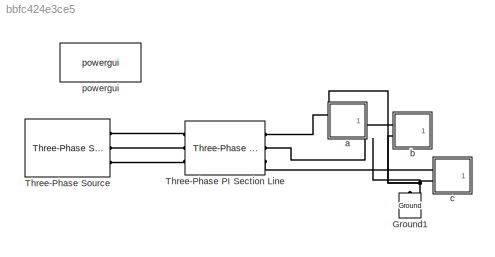
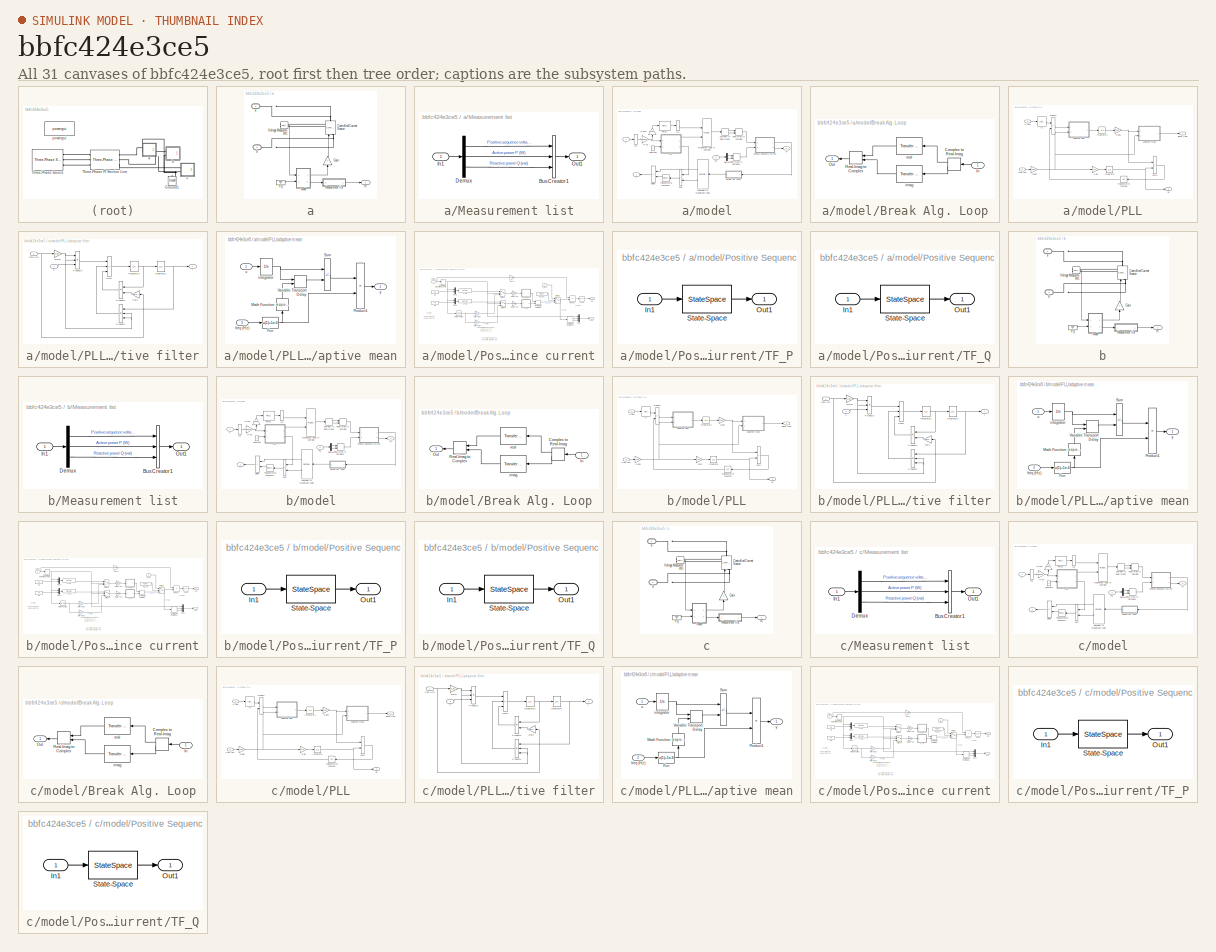
[diagram: thumbnail index - all 31 canvases of the model, root first then tree order]
MODEL slx_bbfc424e3ce5
KIND model
CONFIG AbsTol = auto
CONFIG EnableMultiTasking = on
CONFIG FixedStep = auto
CONFIG MaxStep = auto
CONFIG MinStep = auto
CONFIG RelTol = 1e-3
CONFIG SampleTimeConstraint = Unconstrained
CONFIG Solver = VariableStepAuto
CONFIG SolverName = VariableStepAuto
CONFIG StartTime = 0.0
CONFIG StopTime = 0.04
BLOCK [Reference] Ground1  REF=powerlib/Elements/Ground
  NameLocation = right
  Ports = [0, 0, 0, 0, 0, 1]
  SourceBlock = powerlib/Elements/Ground
  SourceProductBaseCode = PS
  SourceType = Ground
BLOCK [Reference] Three-Phase PI Section Line  REF=powerlib/Elements/Three-Phase
PI Section Line
  AttributesFormatString = \n
  Ports = [0, 0, 0, 0, 0, 3, 3]
  SourceBlock = powerlib/Elements/Three-Phase\nPI Section Line
  SourceProductBaseCode = PS
  SourceType = Three-Phase PI Section Line
BLOCK [Reference] Three-Phase Source  REF=powerlib/Electrical
Sources/Three-Phase Source
  Ports = [0, 0, 0, 0, 0, 0, 3]
  SourceBlock = powerlib/Electrical\nSources/Three-Phase Source
  SourceProductBaseCode = PS
  SourceType = Three-Phase Source
BLOCK [SubSystem] a
  DialogController = POWERSYS.PowerSysDialog
  Ports = [0, 1, 0, 0, 0, 2]
  RequestExecContextInheritance = off
BLOCK [Reference] a/Controlled Current Source  REF=powerlib/Electrical
Sources/Controlled Current Source
  NameLocation = right
  Ports = [1, 0, 0, 0, 0, 1, 1]
  SourceBlock = powerlib/Electrical\nSources/Controlled Current Source
  SourceProductBaseCode = PS
  SourceType = Controlled Current Source
BLOCK [Gain] a/Gain
  Gain = -1
  NameLocation = right
BLOCK [SubSystem] a/Measurement list
  Ports = [1, 1]
  RequestExecContextInheritance = off
BLOCK [BusCreator] a/Measurement list/Bus Creator1
  DisplayOption = bar
  InheritFromInputs = on
  Inputs = 3
  Ports = [3, 1]
BLOCK [Demux] a/Measurement list/Demux
  Outputs = [1,1,1]
  Ports = [1, 3]
BLOCK [Inport] a/Measurement list/In1
BLOCK [Outport] a/Measurement list/Out1
  VectorParamsAs1DForOutWhenUnconnected = off
BLOCK [Ground] a/PQ
BLOCK [Reference] a/Voltage Measurement1  REF=powerlib/Measurements/Voltage Measurement
  Ports = [0, 1, 0, 0, 0, 2]
  SourceBlock = powerlib/Measurements/Voltage Measurement
  SourceProductBaseCode = PS
  SourceType = Voltage Measurement
BLOCK [PMIOPort] a/a
  Side = Left
  Tag = PMCPort
BLOCK [PMIOPort] a/b
  Port = 2
  Side = Left
  Tag = PMCPort
BLOCK [Outport] a/m
  InitialOutput = [0,0,0]
  VectorParamsAs1DForOutWhenUnconnected = off
BLOCK [SubSystem] a/model
  Ports = [2, 2]
  RequestExecContextInheritance = off
BLOCK [SubSystem] a/model/Break Alg. Loop
  Ports = [1, 1]
  RequestExecContextInheritance = off
BLOCK [ComplexToRealImag] a/model/Break Alg. Loop/Complex to Real-Imag
  Ports = [1, 2]
BLOCK [Inport] a/model/Break Alg. Loop/In
BLOCK [Outport] a/model/Break Alg. Loop/Out
  VectorParamsAs1DForOutWhenUnconnected = off
BLOCK [RealImagToComplex] a/model/Break Alg. Loop/Real-Imag to Complex
  Ports = [2, 1]
BLOCK [Reference] a/model/Break Alg. Loop/imag  REF=simulink_extras/Additional
Linear/Transfer Fcn
(with initial outputs)
  Ports = [1, 1]
  SourceBlock = simulink_extras/Additional\nLinear/Transfer Fcn\n(with initial outputs)
  SourceProductBaseCode = SL
  SourceType = Transfer Function with Initial Outputs
BLOCK [Reference] a/model/Break Alg. Loop/real  REF=simulink_extras/Additional
Linear/Transfer Fcn
(with initial outputs)
  Ports = [1, 1]
  SourceBlock = simulink_extras/Additional\nLinear/Transfer Fcn\n(with initial outputs)
  SourceProductBaseCode = SL
  SourceType = Transfer Function with Initial Outputs
BLOCK [ComplexToMagnitudeAngle] a/model/Complex to Magnitude-Angle
  NameLocation = top
  Ports = [1, 2]
BLOCK [ComplexToRealImag] a/model/Complex to Real-Imag1
  Ports = [1, 2]
BLOCK [Constant] a/model/Constant
BLOCK [Demux] a/model/Demux
  DisplayOption = none
  Outputs = 2
  Ports = [1, 2]
BLOCK [Product] a/model/Divide
  Inputs = **
  NameLocation = top
  Ports = [2, 1]
BLOCK [InitialCondition] a/model/IC1
BLOCK [InitialCondition] a/model/IC2
BLOCK [MagnitudeAngleToComplex] a/model/Magnitude-Angle to Complex
  Ports = [2, 1]
BLOCK [SubSystem] a/model/PLL
  Ports = [2, 2]
  RequestExecContextInheritance = off
BLOCK [Gain] a/model/PLL/Gain
  Gain = 2*pi
  NameLocation = top
BLOCK [Gain] a/model/PLL/Gain1
  Gain = 500
  NameLocation = top
BLOCK [Gain] a/model/PLL/Gain2
  Gain = freq
  NameLocation = top
BLOCK [InitialCondition] a/model/PLL/IC
BLOCK [Integrator] a/model/PLL/Integrator
  Ports = [1, 1]
BLOCK [Integrator] a/model/PLL/Integrator1
  Ports = [1, 1]
BLOCK [Product] a/model/PLL/Product
  Inputs = **
  Ports = [2, 1]
  RndMeth = Zero
BLOCK [Sum] a/model/PLL/Sum1
  IconShape = rectangular
  InputSameDT = on
  OutDataTypeStr = Inherit: Same as first input
  Ports = [2, 1]
  SaturateOnIntegerOverflow = on
BLOCK [Trigonometry] a/model/PLL/Trigonometric Function
  Operator = cos
  Ports = [1, 1]
BLOCK [SubSystem] a/model/PLL/adaptive filter
  Ports = [2, 1]
  RequestExecContextInheritance = off
BLOCK [Gain] a/model/PLL/adaptive filter/Gain
  Gain = 2*pi*2*0.707*2
  NameLocation = top
BLOCK [Gain] a/model/PLL/adaptive filter/Gain1
  Gain = 2*pi*2
BLOCK [Product] a/model/PLL/adaptive filter/Product1
  Inputs = ***
  NameLocation = top
  Ports = [3, 1]
  RndMeth = Zero
BLOCK [Product] a/model/PLL/adaptive filter/Product2
  Inputs = **
  NameLocation = top
  Ports = [2, 1]
  RndMeth = Zero
BLOCK [Product] a/model/PLL/adaptive filter/Product3
  Inputs = ***
  Ports = [3, 1]
  RndMeth = Zero
BLOCK [Sum] a/model/PLL/adaptive filter/Sum1
  IconShape = rectangular
  InputSameDT = on
  Inputs = +--
  OutDataTypeStr = Inherit: Same as first input
  Ports = [3, 1]
  SaturateOnIntegerOverflow = on
BLOCK [Inport] a/model/PLL/adaptive filter/freq (Hz)
  Port = 2
BLOCK [Integrator] a/model/PLL/adaptive filter/integrator1
  Ports = [1, 1]
BLOCK [Integrator] a/model/PLL/adaptive filter/integrator2
  Ports = [1, 1]
BLOCK [Inport] a/model/PLL/adaptive filter/u
BLOCK [Outport] a/model/PLL/adaptive filter/y
  VectorParamsAs1DForOutWhenUnconnected = off
BLOCK [SubSystem] a/model/PLL/adaptive mean
  Ports = [2, 1]
  RequestExecContextInheritance = off
BLOCK [Fcn] a/model/PLL/adaptive mean/Fcn
  Expr = u(1)+1e-6
BLOCK [Math] a/model/PLL/adaptive mean/Math Function
  NameLocation = right
  Operator = reciprocal
  Ports = [1, 1]
  SignedPower = on
BLOCK [Product] a/model/PLL/adaptive mean/Product1
  Inputs = **
  Ports = [2, 1]
  RndMeth = Zero
BLOCK [Sum] a/model/PLL/adaptive mean/Sum
  IconShape = rectangular
  InputSameDT = on
  Inputs = +-
  OutDataTypeStr = Inherit: Same as first input
  Ports = [2, 1]
  SaturateOnIntegerOverflow = on
BLOCK [VariableTransportDelay] a/model/PLL/adaptive mean/Variable Transport Delay
  MaximumDelay = 1/40
  MaximumPoints = 4096
  Ports = [2, 1]
BLOCK [Inport] a/model/PLL/adaptive mean/freq (Hz)
  Port = 2
BLOCK [Integrator] a/model/PLL/adaptive mean/integrator
  Ports = [1, 1]
BLOCK [Inport] a/model/PLL/adaptive mean/u
BLOCK [Outport] a/model/PLL/adaptive mean/y
  VectorParamsAs1DForOutWhenUnconnected = off
BLOCK [Outport] a/model/PLL/alpha (rad)
  VectorParamsAs1DForOutWhenUnconnected = off
BLOCK [Inport] a/model/PLL/freq (pu)
  Port = 2
BLOCK [Inport] a/model/PLL/v (pu)
BLOCK [Outport] a/model/PLL/wt
  Port = 2
  VectorParamsAs1DForOutWhenUnconnected = off
BLOCK [Inport] a/model/PQ
  Port = 2
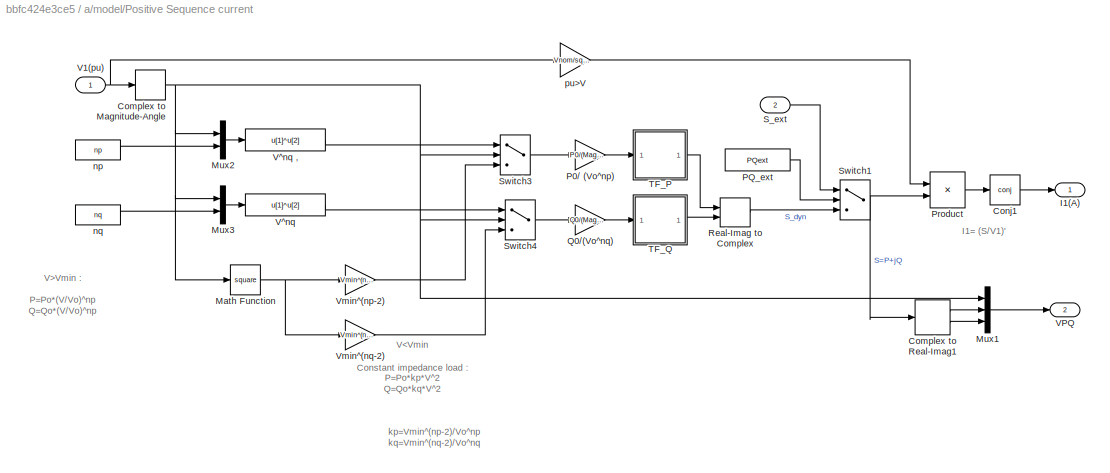
BLOCK [SubSystem] a/model/Positive Sequence current
  Ports = [2, 2]
  RequestExecContextInheritance = off
BLOCK [ComplexToMagnitudeAngle] a/model/Positive Sequence current/Complex to Magnitude-Angle
  Output = Magnitude
  Ports = [1, 1]
BLOCK [ComplexToRealImag] a/model/Positive Sequence current/Complex to Real-Imag1
  Ports = [1, 2]
BLOCK [Math] a/model/Positive Sequence current/Conj1
  Operator = conj
  Ports = [1, 1]
  SignedPower = on
BLOCK [Outport] a/model/Positive Sequence current/I1(A)
  VectorParamsAs1DForOutWhenUnconnected = off
BLOCK [Math] a/model/Positive Sequence current/Math Function
  Operator = square
  Ports = [1, 1]
  SignedPower = on
BLOCK [Mux] a/model/Positive Sequence current/Mux1
  DisplayOption = bar
  Inputs = 3
  Ports = [3, 1]
BLOCK [Mux] a/model/Positive Sequence current/Mux2
  DisplayOption = bar
  Inputs = 2
  Ports = [2, 1]
BLOCK [Mux] a/model/Positive Sequence current/Mux3
  DisplayOption = bar
  Inputs = 2
  Ports = [2, 1]
BLOCK [Gain] a/model/Positive Sequence current/P0// (Vo^np)
  Gain = P0/(Mag_V0^np)
  OutDataTypeStr = Inherit: Same as input
  ParamDataTypeStr = Inherit: Same as input
  SaturateOnIntegerOverflow = on
BLOCK [Constant] a/model/Positive Sequence current/PQ_ext
  Value = PQext
BLOCK [Product] a/model/Positive Sequence current/Product
  InputSameDT = on
  Inputs = /*
  OutDataTypeStr = Inherit: Same as first input
  Ports = [2, 1]
  SaturateOnIntegerOverflow = on
BLOCK [Gain] a/model/Positive Sequence current/Q0//(Vo^nq)
  Gain = Q0/(Mag_V0^nq)
  OutDataTypeStr = Inherit: Same as input
  ParamDataTypeStr = Inherit: Same as input
  SaturateOnIntegerOverflow = on
BLOCK [RealImagToComplex] a/model/Positive Sequence current/Real-Imag to Complex
  Ports = [2, 1]
BLOCK [Inport] a/model/Positive Sequence current/S_ext
  Port = 2
BLOCK [Switch] a/model/Positive Sequence current/Switch1
  SaturateOnIntegerOverflow = off
  Threshold = 0.5
BLOCK [Switch] a/model/Positive Sequence current/Switch3
  SaturateOnIntegerOverflow = off
  Threshold = Vmin
BLOCK [Switch] a/model/Positive Sequence current/Switch4
  SaturateOnIntegerOverflow = off
  Threshold = Vmin
BLOCK [SubSystem] a/model/Positive Sequence current/TF_P
  Ports = [1, 1]
  RequestExecContextInheritance = off
BLOCK [Inport] a/model/Positive Sequence current/TF_P/In1
BLOCK [Outport] a/model/Positive Sequence current/TF_P/Out1
  VectorParamsAs1DForOutWhenUnconnected = off
BLOCK [StateSpace] a/model/Positive Sequence current/TF_P/State-Space
  A = Ac
  B = Bc
  C = Cc
  D = Dc
  InitialCondition = x0c
  Ports = [1, 1]
BLOCK [SubSystem] a/model/Positive Sequence current/TF_Q
  Ports = [1, 1]
  RequestExecContextInheritance = off
BLOCK [Inport] a/model/Positive Sequence current/TF_Q/In1
BLOCK [Outport] a/model/Positive Sequence current/TF_Q/Out1
  VectorParamsAs1DForOutWhenUnconnected = off
BLOCK [StateSpace] a/model/Positive Sequence current/TF_Q/State-Space
  A = Ac
  B = Bc
  C = Cc
  D = Dc
  InitialCondition = x0c
  Ports = [1, 1]
BLOCK [Inport] a/model/Positive Sequence current/V1(pu)
BLOCK [Outport] a/model/Positive Sequence current/VPQ
  Port = 2
  VectorParamsAs1DForOutWhenUnconnected = off
BLOCK [Fcn] a/model/Positive Sequence current/V^nq
  Expr = u[1]^u[2]
BLOCK [Fcn] a/model/Positive Sequence current/V^nq ,
  Expr = u[1]^u[2]
BLOCK [Gain] a/model/Positive Sequence current/Vmin^(np-2)
  Gain = Vmin^(np-2)
  OutDataTypeStr = Inherit: Same as input
  ParamDataTypeStr = Inherit: Same as input
  SaturateOnIntegerOverflow = on
BLOCK [Gain] a/model/Positive Sequence current/Vmin^(nq-2)
  Gain = Vmin^(nq-2)
  OutDataTypeStr = Inherit: Same as input
  ParamDataTypeStr = Inherit: Same as input
  SaturateOnIntegerOverflow = on
BLOCK [Constant] a/model/Positive Sequence current/np
  Value = np
BLOCK [Constant] a/model/Positive Sequence current/nq
  Value = nq
BLOCK [Gain] a/model/Positive Sequence current/pu>V
  Gain = Vnom/sqrt(2)
  OutDataTypeStr = Inherit: Same as input
  ParamDataTypeStr = Inherit: Same as input
  SaturateOnIntegerOverflow = on
BLOCK [Reference] a/model/RMS1  REF=powerlib_meascontrol/Measurements/RMS
  Ports = [1, 1]
  SourceBlock = powerlib_meascontrol/Measurements/RMS
  SourceProductBaseCode = PS
  SourceType = RMS
BLOCK [RealImagToComplex] a/model/Real-Imag to Complex
  Ports = [2, 1]
BLOCK [RealImagToComplex] a/model/Real-Imag to Complex1
  Ports = [2, 1]
BLOCK [Sum] a/model/Sum
  IconShape = rectangular
  NameLocation = top
  Ports = [2, 1]
BLOCK [Trigonometry] a/model/Trigonometric Function1
  Ports = [1, 1]
BLOCK [Gain] a/model/V> pu
  Gain = 1/Vbase/sqrt(3)
  OutDataTypeStr = Inherit: Same as input
  ParamDataTypeStr = Inherit: Same as input
  SaturateOnIntegerOverflow = on
BLOCK [Gain] a/model/V> pu1
  Gain = sqrt(2)
  NameLocation = right
  OutDataTypeStr = Inherit: Same as input
  ParamDataTypeStr = Inherit: Same as input
  SaturateOnIntegerOverflow = on
BLOCK [Outport] a/model/i
  VectorParamsAs1DForOutWhenUnconnected = off
BLOCK [Outport] a/model/m
  Port = 2
  VectorParamsAs1DForOutWhenUnconnected = off
BLOCK [Inport] a/model/v
BLOCK [SubSystem] b
  DialogController = POWERSYS.PowerSysDialog
  Ports = [0, 1, 0, 0, 0, 2]
  RequestExecContextInheritance = off
BLOCK [Reference] b/Controlled Current Source  REF=powerlib/Electrical
Sources/Controlled Current Source
  NameLocation = right
  Ports = [1, 0, 0, 0, 0, 1, 1]
  SourceBlock = powerlib/Electrical\nSources/Controlled Current Source
  SourceProductBaseCode = PS
  SourceType = Controlled Current Source
BLOCK [Gain] b/Gain
  Gain = -1
  NameLocation = right
BLOCK [SubSystem] b/Measurement list
  Ports = [1, 1]
  RequestExecContextInheritance = off
BLOCK [BusCreator] b/Measurement list/Bus Creator1
  DisplayOption = bar
  InheritFromInputs = on
  Inputs = 3
  Ports = [3, 1]
BLOCK [Demux] b/Measurement list/Demux
  Outputs = [1,1,1]
  Ports = [1, 3]
BLOCK [Inport] b/Measurement list/In1
BLOCK [Outport] b/Measurement list/Out1
  VectorParamsAs1DForOutWhenUnconnected = off
BLOCK [Ground] b/PQ
BLOCK [Reference] b/Voltage Measurement1  REF=powerlib/Measurements/Voltage Measurement
  Ports = [0, 1, 0, 0, 0, 2]
  SourceBlock = powerlib/Measurements/Voltage Measurement
  SourceProductBaseCode = PS
  SourceType = Voltage Measurement
BLOCK [PMIOPort] b/a
  Side = Left
  Tag = PMCPort
BLOCK [PMIOPort] b/b
  Port = 2
  Side = Left
  Tag = PMCPort
BLOCK [Outport] b/m
  InitialOutput = [0,0,0]
  VectorParamsAs1DForOutWhenUnconnected = off
BLOCK [SubSystem] b/model
  Ports = [2, 2]
  RequestExecContextInheritance = off
BLOCK [SubSystem] b/model/Break Alg. Loop
  Ports = [1, 1]
  RequestExecContextInheritance = off
BLOCK [ComplexToRealImag] b/model/Break Alg. Loop/Complex to Real-Imag
  Ports = [1, 2]
BLOCK [Inport] b/model/Break Alg. Loop/In
BLOCK [Outport] b/model/Break Alg. Loop/Out
  VectorParamsAs1DForOutWhenUnconnected = off
BLOCK [RealImagToComplex] b/model/Break Alg. Loop/Real-Imag to Complex
  Ports = [2, 1]
BLOCK [Reference] b/model/Break Alg. Loop/imag  REF=simulink_extras/Additional
Linear/Transfer Fcn
(with initial outputs)
  Ports = [1, 1]
  SourceBlock = simulink_extras/Additional\nLinear/Transfer Fcn\n(with initial outputs)
  SourceProductBaseCode = SL
  SourceType = Transfer Function with Initial Outputs
BLOCK [Reference] b/model/Break Alg. Loop/real  REF=simulink_extras/Additional
Linear/Transfer Fcn
(with initial outputs)
  Ports = [1, 1]
  SourceBlock = simulink_extras/Additional\nLinear/Transfer Fcn\n(with initial outputs)
  SourceProductBaseCode = SL
  SourceType = Transfer Function with Initial Outputs
BLOCK [ComplexToMagnitudeAngle] b/model/Complex to Magnitude-Angle
  NameLocation = top
  Ports = [1, 2]
BLOCK [ComplexToRealImag] b/model/Complex to Real-Imag1
  Ports = [1, 2]
BLOCK [Constant] b/model/Constant
BLOCK [Demux] b/model/Demux
  DisplayOption = none
  Outputs = 2
  Ports = [1, 2]
BLOCK [Product] b/model/Divide
  Inputs = **
  NameLocation = top
  Ports = [2, 1]
BLOCK [InitialCondition] b/model/IC1
BLOCK [InitialCondition] b/model/IC2
BLOCK [MagnitudeAngleToComplex] b/model/Magnitude-Angle to Complex
  Ports = [2, 1]
BLOCK [SubSystem] b/model/PLL
  Ports = [2, 2]
  RequestExecContextInheritance = off
BLOCK [Gain] b/model/PLL/Gain
  Gain = 2*pi
  NameLocation = top
BLOCK [Gain] b/model/PLL/Gain1
  Gain = 500
  NameLocation = top
BLOCK [Gain] b/model/PLL/Gain2
  Gain = freq
  NameLocation = top
BLOCK [InitialCondition] b/model/PLL/IC
BLOCK [Integrator] b/model/PLL/Integrator
  Ports = [1, 1]
BLOCK [Integrator] b/model/PLL/Integrator1
  Ports = [1, 1]
BLOCK [Product] b/model/PLL/Product
  Inputs = **
  Ports = [2, 1]
  RndMeth = Zero
BLOCK [Sum] b/model/PLL/Sum1
  IconShape = rectangular
  InputSameDT = on
  OutDataTypeStr = Inherit: Same as first input
  Ports = [2, 1]
  SaturateOnIntegerOverflow = on
BLOCK [Trigonometry] b/model/PLL/Trigonometric Function
  Operator = cos
  Ports = [1, 1]
BLOCK [SubSystem] b/model/PLL/adaptive filter
  Ports = [2, 1]
  RequestExecContextInheritance = off
BLOCK [Gain] b/model/PLL/adaptive filter/Gain
  Gain = 2*pi*2*0.707*2
  NameLocation = top
BLOCK [Gain] b/model/PLL/adaptive filter/Gain1
  Gain = 2*pi*2
BLOCK [Product] b/model/PLL/adaptive filter/Product1
  Inputs = ***
  NameLocation = top
  Ports = [3, 1]
  RndMeth = Zero
BLOCK [Product] b/model/PLL/adaptive filter/Product2
  Inputs = **
  NameLocation = top
  Ports = [2, 1]
  RndMeth = Zero
BLOCK [Product] b/model/PLL/adaptive filter/Product3
  Inputs = ***
  Ports = [3, 1]
  RndMeth = Zero
BLOCK [Sum] b/model/PLL/adaptive filter/Sum1
  IconShape = rectangular
  InputSameDT = on
  Inputs = +--
  OutDataTypeStr = Inherit: Same as first input
  Ports = [3, 1]
  SaturateOnIntegerOverflow = on
BLOCK [Inport] b/model/PLL/adaptive filter/freq (Hz)
  Port = 2
BLOCK [Integrator] b/model/PLL/adaptive filter/integrator1
  Ports = [1, 1]
BLOCK [Integrator] b/model/PLL/adaptive filter/integrator2
  Ports = [1, 1]
BLOCK [Inport] b/model/PLL/adaptive filter/u
BLOCK [Outport] b/model/PLL/adaptive filter/y
  VectorParamsAs1DForOutWhenUnconnected = off
BLOCK [SubSystem] b/model/PLL/adaptive mean
  Ports = [2, 1]
  RequestExecContextInheritance = off
BLOCK [Fcn] b/model/PLL/adaptive mean/Fcn
  Expr = u(1)+1e-6
BLOCK [Math] b/model/PLL/adaptive mean/Math Function
  NameLocation = right
  Operator = reciprocal
  Ports = [1, 1]
  SignedPower = on
BLOCK [Product] b/model/PLL/adaptive mean/Product1
  Inputs = **
  Ports = [2, 1]
  RndMeth = Zero
BLOCK [Sum] b/model/PLL/adaptive mean/Sum
  IconShape = rectangular
  InputSameDT = on
  Inputs = +-
  OutDataTypeStr = Inherit: Same as first input
  Ports = [2, 1]
  SaturateOnIntegerOverflow = on
BLOCK [VariableTransportDelay] b/model/PLL/adaptive mean/Variable Transport Delay
  MaximumDelay = 1/40
  MaximumPoints = 4096
  Ports = [2, 1]
BLOCK [Inport] b/model/PLL/adaptive mean/freq (Hz)
  Port = 2
BLOCK [Integrator] b/model/PLL/adaptive mean/integrator
  Ports = [1, 1]
BLOCK [Inport] b/model/PLL/adaptive mean/u
BLOCK [Outport] b/model/PLL/adaptive mean/y
  VectorParamsAs1DForOutWhenUnconnected = off
BLOCK [Outport] b/model/PLL/alpha (rad)
  VectorParamsAs1DForOutWhenUnconnected = off
BLOCK [Inport] b/model/PLL/freq (pu)
  Port = 2
BLOCK [Inport] b/model/PLL/v (pu)
BLOCK [Outport] b/model/PLL/wt
  Port = 2
  VectorParamsAs1DForOutWhenUnconnected = off
BLOCK [Inport] b/model/PQ
  Port = 2
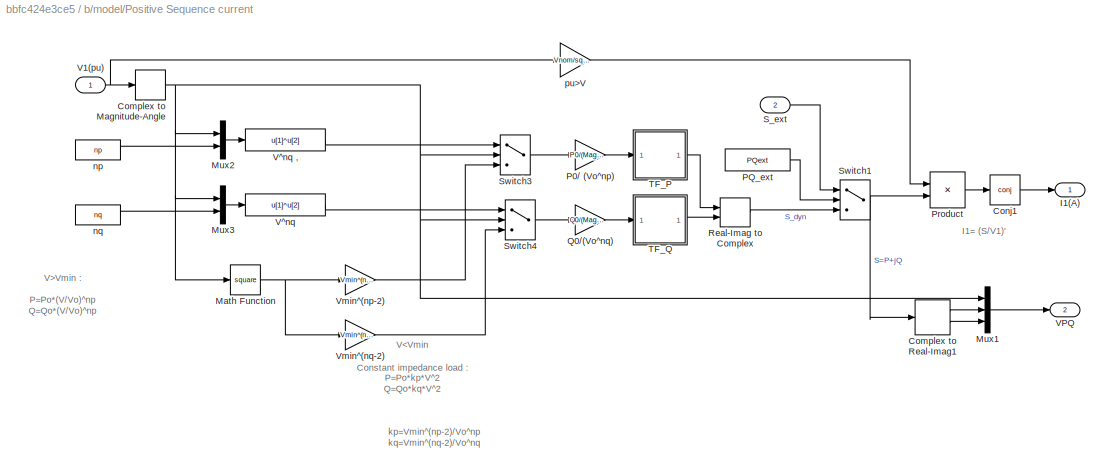
BLOCK [SubSystem] b/model/Positive Sequence current
  Ports = [2, 2]
  RequestExecContextInheritance = off
BLOCK [ComplexToMagnitudeAngle] b/model/Positive Sequence current/Complex to Magnitude-Angle
  Output = Magnitude
  Ports = [1, 1]
BLOCK [ComplexToRealImag] b/model/Positive Sequence current/Complex to Real-Imag1
  Ports = [1, 2]
BLOCK [Math] b/model/Positive Sequence current/Conj1
  Operator = conj
  Ports = [1, 1]
  SignedPower = on
BLOCK [Outport] b/model/Positive Sequence current/I1(A)
  VectorParamsAs1DForOutWhenUnconnected = off
BLOCK [Math] b/model/Positive Sequence current/Math Function
  Operator = square
  Ports = [1, 1]
  SignedPower = on
BLOCK [Mux] b/model/Positive Sequence current/Mux1
  DisplayOption = bar
  Inputs = 3
  Ports = [3, 1]
BLOCK [Mux] b/model/Positive Sequence current/Mux2
  DisplayOption = bar
  Inputs = 2
  Ports = [2, 1]
BLOCK [Mux] b/model/Positive Sequence current/Mux3
  DisplayOption = bar
  Inputs = 2
  Ports = [2, 1]
BLOCK [Gain] b/model/Positive Sequence current/P0// (Vo^np)
  Gain = P0/(Mag_V0^np)
  OutDataTypeStr = Inherit: Same as input
  ParamDataTypeStr = Inherit: Same as input
  SaturateOnIntegerOverflow = on
BLOCK [Constant] b/model/Positive Sequence current/PQ_ext
  Value = PQext
BLOCK [Product] b/model/Positive Sequence current/Product
  InputSameDT = on
  Inputs = /*
  OutDataTypeStr = Inherit: Same as first input
  Ports = [2, 1]
  SaturateOnIntegerOverflow = on
BLOCK [Gain] b/model/Positive Sequence current/Q0//(Vo^nq)
  Gain = Q0/(Mag_V0^nq)
  OutDataTypeStr = Inherit: Same as input
  ParamDataTypeStr = Inherit: Same as input
  SaturateOnIntegerOverflow = on
BLOCK [RealImagToComplex] b/model/Positive Sequence current/Real-Imag to Complex
  Ports = [2, 1]
BLOCK [Inport] b/model/Positive Sequence current/S_ext
  Port = 2
BLOCK [Switch] b/model/Positive Sequence current/Switch1
  SaturateOnIntegerOverflow = off
  Threshold = 0.5
BLOCK [Switch] b/model/Positive Sequence current/Switch3
  SaturateOnIntegerOverflow = off
  Threshold = Vmin
BLOCK [Switch] b/model/Positive Sequence current/Switch4
  SaturateOnIntegerOverflow = off
  Threshold = Vmin
BLOCK [SubSystem] b/model/Positive Sequence current/TF_P
  Ports = [1, 1]
  RequestExecContextInheritance = off
BLOCK [Inport] b/model/Positive Sequence current/TF_P/In1
BLOCK [Outport] b/model/Positive Sequence current/TF_P/Out1
  VectorParamsAs1DForOutWhenUnconnected = off
BLOCK [StateSpace] b/model/Positive Sequence current/TF_P/State-Space
  A = Ac
  B = Bc
  C = Cc
  D = Dc
  InitialCondition = x0c
  Ports = [1, 1]
BLOCK [SubSystem] b/model/Positive Sequence current/TF_Q
  Ports = [1, 1]
  RequestExecContextInheritance = off
BLOCK [Inport] b/model/Positive Sequence current/TF_Q/In1
BLOCK [Outport] b/model/Positive Sequence current/TF_Q/Out1
  VectorParamsAs1DForOutWhenUnconnected = off
BLOCK [StateSpace] b/model/Positive Sequence current/TF_Q/State-Space
  A = Ac
  B = Bc
  C = Cc
  D = Dc
  InitialCondition = x0c
  Ports = [1, 1]
BLOCK [Inport] b/model/Positive Sequence current/V1(pu)
BLOCK [Outport] b/model/Positive Sequence current/VPQ
  Port = 2
  VectorParamsAs1DForOutWhenUnconnected = off
BLOCK [Fcn] b/model/Positive Sequence current/V^nq
  Expr = u[1]^u[2]
BLOCK [Fcn] b/model/Positive Sequence current/V^nq ,
  Expr = u[1]^u[2]
BLOCK [Gain] b/model/Positive Sequence current/Vmin^(np-2)
  Gain = Vmin^(np-2)
  OutDataTypeStr = Inherit: Same as input
  ParamDataTypeStr = Inherit: Same as input
  SaturateOnIntegerOverflow = on
BLOCK [Gain] b/model/Positive Sequence current/Vmin^(nq-2)
  Gain = Vmin^(nq-2)
  OutDataTypeStr = Inherit: Same as input
  ParamDataTypeStr = Inherit: Same as input
  SaturateOnIntegerOverflow = on
BLOCK [Constant] b/model/Positive Sequence current/np
  Value = np
BLOCK [Constant] b/model/Positive Sequence current/nq
  Value = nq
BLOCK [Gain] b/model/Positive Sequence current/pu>V
  Gain = Vnom/sqrt(2)
  OutDataTypeStr = Inherit: Same as input
  ParamDataTypeStr = Inherit: Same as input
  SaturateOnIntegerOverflow = on
BLOCK [Reference] b/model/RMS1  REF=powerlib_meascontrol/Measurements/RMS
  Ports = [1, 1]
  SourceBlock = powerlib_meascontrol/Measurements/RMS
  SourceProductBaseCode = PS
  SourceType = RMS
BLOCK [RealImagToComplex] b/model/Real-Imag to Complex
  Ports = [2, 1]
BLOCK [RealImagToComplex] b/model/Real-Imag to Complex1
  Ports = [2, 1]
BLOCK [Sum] b/model/Sum
  IconShape = rectangular
  NameLocation = top
  Ports = [2, 1]
BLOCK [Trigonometry] b/model/Trigonometric Function1
  Ports = [1, 1]
BLOCK [Gain] b/model/V> pu
  Gain = 1/Vbase/sqrt(3)
  OutDataTypeStr = Inherit: Same as input
  ParamDataTypeStr = Inherit: Same as input
  SaturateOnIntegerOverflow = on
BLOCK [Gain] b/model/V> pu1
  Gain = sqrt(2)
  NameLocation = right
  OutDataTypeStr = Inherit: Same as input
  ParamDataTypeStr = Inherit: Same as input
  SaturateOnIntegerOverflow = on
BLOCK [Outport] b/model/i
  VectorParamsAs1DForOutWhenUnconnected = off
BLOCK [Outport] b/model/m
  Port = 2
  VectorParamsAs1DForOutWhenUnconnected = off
BLOCK [Inport] b/model/v
BLOCK [SubSystem] c
  DialogController = POWERSYS.PowerSysDialog
  Ports = [0, 1, 0, 0, 0, 2]
  RequestExecContextInheritance = off
BLOCK [Reference] c/Controlled Current Source  REF=powerlib/Electrical
Sources/Controlled Current Source
  NameLocation = right
  Ports = [1, 0, 0, 0, 0, 1, 1]
  SourceBlock = powerlib/Electrical\nSources/Controlled Current Source
  SourceProductBaseCode = PS
  SourceType = Controlled Current Source
BLOCK [Gain] c/Gain
  Gain = -1
  NameLocation = right
BLOCK [SubSystem] c/Measurement list
  Ports = [1, 1]
  RequestExecContextInheritance = off
BLOCK [BusCreator] c/Measurement list/Bus Creator1
  DisplayOption = bar
  InheritFromInputs = on
  Inputs = 3
  Ports = [3, 1]
BLOCK [Demux] c/Measurement list/Demux
  Outputs = [1,1,1]
  Ports = [1, 3]
BLOCK [Inport] c/Measurement list/In1
BLOCK [Outport] c/Measurement list/Out1
  VectorParamsAs1DForOutWhenUnconnected = off
BLOCK [Ground] c/PQ
BLOCK [Reference] c/Voltage Measurement1  REF=powerlib/Measurements/Voltage Measurement
  Ports = [0, 1, 0, 0, 0, 2]
  SourceBlock = powerlib/Measurements/Voltage Measurement
  SourceProductBaseCode = PS
  SourceType = Voltage Measurement
BLOCK [PMIOPort] c/a
  Side = Left
  Tag = PMCPort
BLOCK [PMIOPort] c/b
  Port = 2
  Side = Left
  Tag = PMCPort
BLOCK [Outport] c/m
  InitialOutput = [0,0,0]
  VectorParamsAs1DForOutWhenUnconnected = off
BLOCK [SubSystem] c/model
  Ports = [2, 2]
  RequestExecContextInheritance = off
BLOCK [SubSystem] c/model/Break Alg. Loop
  Ports = [1, 1]
  RequestExecContextInheritance = off
BLOCK [ComplexToRealImag] c/model/Break Alg. Loop/Complex to Real-Imag
  Ports = [1, 2]
BLOCK [Inport] c/model/Break Alg. Loop/In
BLOCK [Outport] c/model/Break Alg. Loop/Out
  VectorParamsAs1DForOutWhenUnconnected = off
BLOCK [RealImagToComplex] c/model/Break Alg. Loop/Real-Imag to Complex
  Ports = [2, 1]
BLOCK [Reference] c/model/Break Alg. Loop/imag  REF=simulink_extras/Additional
Linear/Transfer Fcn
(with initial outputs)
  Ports = [1, 1]
  SourceBlock = simulink_extras/Additional\nLinear/Transfer Fcn\n(with initial outputs)
  SourceProductBaseCode = SL
  SourceType = Transfer Function with Initial Outputs
BLOCK [Reference] c/model/Break Alg. Loop/real  REF=simulink_extras/Additional
Linear/Transfer Fcn
(with initial outputs)
  Ports = [1, 1]
  SourceBlock = simulink_extras/Additional\nLinear/Transfer Fcn\n(with initial outputs)
  SourceProductBaseCode = SL
  SourceType = Transfer Function with Initial Outputs
BLOCK [ComplexToMagnitudeAngle] c/model/Complex to Magnitude-Angle
  NameLocation = top
  Ports = [1, 2]
BLOCK [ComplexToRealImag] c/model/Complex to Real-Imag1
  Ports = [1, 2]
BLOCK [Constant] c/model/Constant
BLOCK [Demux] c/model/Demux
  DisplayOption = none
  Outputs = 2
  Ports = [1, 2]
BLOCK [Product] c/model/Divide
  Inputs = **
  NameLocation = top
  Ports = [2, 1]
BLOCK [InitialCondition] c/model/IC1
BLOCK [InitialCondition] c/model/IC2
BLOCK [MagnitudeAngleToComplex] c/model/Magnitude-Angle to Complex
  Ports = [2, 1]
BLOCK [SubSystem] c/model/PLL
  Ports = [2, 2]
  RequestExecContextInheritance = off
BLOCK [Gain] c/model/PLL/Gain
  Gain = 2*pi
  NameLocation = top
BLOCK [Gain] c/model/PLL/Gain1
  Gain = 500
  NameLocation = top
BLOCK [Gain] c/model/PLL/Gain2
  Gain = freq
  NameLocation = top
BLOCK [InitialCondition] c/model/PLL/IC
BLOCK [Integrator] c/model/PLL/Integrator
  Ports = [1, 1]
BLOCK [Integrator] c/model/PLL/Integrator1
  Ports = [1, 1]
BLOCK [Product] c/model/PLL/Product
  Inputs = **
  Ports = [2, 1]
  RndMeth = Zero
BLOCK [Sum] c/model/PLL/Sum1
  IconShape = rectangular
  InputSameDT = on
  OutDataTypeStr = Inherit: Same as first input
  Ports = [2, 1]
  SaturateOnIntegerOverflow = on
BLOCK [Trigonometry] c/model/PLL/Trigonometric Function
  Operator = cos
  Ports = [1, 1]
BLOCK [SubSystem] c/model/PLL/adaptive filter
  Ports = [2, 1]
  RequestExecContextInheritance = off
BLOCK [Gain] c/model/PLL/adaptive filter/Gain
  Gain = 2*pi*2*0.707*2
  NameLocation = top
BLOCK [Gain] c/model/PLL/adaptive filter/Gain1
  Gain = 2*pi*2
BLOCK [Product] c/model/PLL/adaptive filter/Product1
  Inputs = ***
  NameLocation = top
  Ports = [3, 1]
  RndMeth = Zero
BLOCK [Product] c/model/PLL/adaptive filter/Product2
  Inputs = **
  NameLocation = top
  Ports = [2, 1]
  RndMeth = Zero
BLOCK [Product] c/model/PLL/adaptive filter/Product3
  Inputs = ***
  Ports = [3, 1]
  RndMeth = Zero
BLOCK [Sum] c/model/PLL/adaptive filter/Sum1
  IconShape = rectangular
  InputSameDT = on
  Inputs = +--
  OutDataTypeStr = Inherit: Same as first input
  Ports = [3, 1]
  SaturateOnIntegerOverflow = on
BLOCK [Inport] c/model/PLL/adaptive filter/freq (Hz)
  Port = 2
BLOCK [Integrator] c/model/PLL/adaptive filter/integrator1
  Ports = [1, 1]
BLOCK [Integrator] c/model/PLL/adaptive filter/integrator2
  Ports = [1, 1]
BLOCK [Inport] c/model/PLL/adaptive filter/u
BLOCK [Outport] c/model/PLL/adaptive filter/y
  VectorParamsAs1DForOutWhenUnconnected = off
BLOCK [SubSystem] c/model/PLL/adaptive mean
  Ports = [2, 1]
  RequestExecContextInheritance = off
BLOCK [Fcn] c/model/PLL/adaptive mean/Fcn
  Expr = u(1)+1e-6
BLOCK [Math] c/model/PLL/adaptive mean/Math Function
  NameLocation = right
  Operator = reciprocal
  Ports = [1, 1]
  SignedPower = on
BLOCK [Product] c/model/PLL/adaptive mean/Product1
  Inputs = **
  Ports = [2, 1]
  RndMeth = Zero
BLOCK [Sum] c/model/PLL/adaptive mean/Sum
  IconShape = rectangular
  InputSameDT = on
  Inputs = +-
  OutDataTypeStr = Inherit: Same as first input
  Ports = [2, 1]
  SaturateOnIntegerOverflow = on
BLOCK [VariableTransportDelay] c/model/PLL/adaptive mean/Variable Transport Delay
  MaximumDelay = 1/40
  MaximumPoints = 4096
  Ports = [2, 1]
BLOCK [Inport] c/model/PLL/adaptive mean/freq (Hz)
  Port = 2
BLOCK [Integrator] c/model/PLL/adaptive mean/integrator
  Ports = [1, 1]
BLOCK [Inport] c/model/PLL/adaptive mean/u
BLOCK [Outport] c/model/PLL/adaptive mean/y
  VectorParamsAs1DForOutWhenUnconnected = off
BLOCK [Outport] c/model/PLL/alpha (rad)
  VectorParamsAs1DForOutWhenUnconnected = off
BLOCK [Inport] c/model/PLL/freq (pu)
  Port = 2
BLOCK [Inport] c/model/PLL/v (pu)
BLOCK [Outport] c/model/PLL/wt
  Port = 2
  VectorParamsAs1DForOutWhenUnconnected = off
BLOCK [Inport] c/model/PQ
  Port = 2
BLOCK [SubSystem] c/model/Positive Sequence current
  Ports = [2, 2]
  RequestExecContextInheritance = off
BLOCK [ComplexToMagnitudeAngle] c/model/Positive Sequence current/Complex to Magnitude-Angle
  Output = Magnitude
  Ports = [1, 1]
BLOCK [ComplexToRealImag] c/model/Positive Sequence current/Complex to Real-Imag1
  Ports = [1, 2]
BLOCK [Math] c/model/Positive Sequence current/Conj1
  Operator = conj
  Ports = [1, 1]
  SignedPower = on
BLOCK [Outport] c/model/Positive Sequence current/I1(A)
  VectorParamsAs1DForOutWhenUnconnected = off
BLOCK [Math] c/model/Positive Sequence current/Math Function
  Operator = square
  Ports = [1, 1]
  SignedPower = on
BLOCK [Mux] c/model/Positive Sequence current/Mux1
  DisplayOption = bar
  Inputs = 3
  Ports = [3, 1]
BLOCK [Mux] c/model/Positive Sequence current/Mux2
  DisplayOption = bar
  Inputs = 2
  Ports = [2, 1]
BLOCK [Mux] c/model/Positive Sequence current/Mux3
  DisplayOption = bar
  Inputs = 2
  Ports = [2, 1]
BLOCK [Gain] c/model/Positive Sequence current/P0// (Vo^np)
  Gain = P0/(Mag_V0^np)
  OutDataTypeStr = Inherit: Same as input
  ParamDataTypeStr = Inherit: Same as input
  SaturateOnIntegerOverflow = on
BLOCK [Constant] c/model/Positive Sequence current/PQ_ext
  Value = PQext
BLOCK [Product] c/model/Positive Sequence current/Product
  InputSameDT = on
  Inputs = /*
  OutDataTypeStr = Inherit: Same as first input
  Ports = [2, 1]
  SaturateOnIntegerOverflow = on
BLOCK [Gain] c/model/Positive Sequence current/Q0//(Vo^nq)
  Gain = Q0/(Mag_V0^nq)
  OutDataTypeStr = Inherit: Same as input
  ParamDataTypeStr = Inherit: Same as input
  SaturateOnIntegerOverflow = on
BLOCK [RealImagToComplex] c/model/Positive Sequence current/Real-Imag to Complex
  Ports = [2, 1]
BLOCK [Inport] c/model/Positive Sequence current/S_ext
  Port = 2
BLOCK [Switch] c/model/Positive Sequence current/Switch1
  SaturateOnIntegerOverflow = off
  Threshold = 0.5
BLOCK [Switch] c/model/Positive Sequence current/Switch3
  SaturateOnIntegerOverflow = off
  Threshold = Vmin
BLOCK [Switch] c/model/Positive Sequence current/Switch4
  SaturateOnIntegerOverflow = off
  Threshold = Vmin
BLOCK [SubSystem] c/model/Positive Sequence current/TF_P
  Ports = [1, 1]
  RequestExecContextInheritance = off
BLOCK [Inport] c/model/Positive Sequence current/TF_P/In1
BLOCK [Outport] c/model/Positive Sequence current/TF_P/Out1
  VectorParamsAs1DForOutWhenUnconnected = off
BLOCK [StateSpace] c/model/Positive Sequence current/TF_P/State-Space
  A = Ac
  B = Bc
  C = Cc
  D = Dc
  InitialCondition = x0c
  Ports = [1, 1]
BLOCK [SubSystem] c/model/Positive Sequence current/TF_Q
  Ports = [1, 1]
  RequestExecContextInheritance = off
BLOCK [Inport] c/model/Positive Sequence current/TF_Q/In1
BLOCK [Outport] c/model/Positive Sequence current/TF_Q/Out1
  VectorParamsAs1DForOutWhenUnconnected = off
BLOCK [StateSpace] c/model/Positive Sequence current/TF_Q/State-Space
  A = Ac
  B = Bc
  C = Cc
  D = Dc
  InitialCondition = x0c
  Ports = [1, 1]
BLOCK [Inport] c/model/Positive Sequence current/V1(pu)
BLOCK [Outport] c/model/Positive Sequence current/VPQ
  Port = 2
  VectorParamsAs1DForOutWhenUnconnected = off
BLOCK [Fcn] c/model/Positive Sequence current/V^nq
  Expr = u[1]^u[2]
BLOCK [Fcn] c/model/Positive Sequence current/V^nq ,
  Expr = u[1]^u[2]
BLOCK [Gain] c/model/Positive Sequence current/Vmin^(np-2)
  Gain = Vmin^(np-2)
  OutDataTypeStr = Inherit: Same as input
  ParamDataTypeStr = Inherit: Same as input
  SaturateOnIntegerOverflow = on
BLOCK [Gain] c/model/Positive Sequence current/Vmin^(nq-2)
  Gain = Vmin^(nq-2)
  OutDataTypeStr = Inherit: Same as input
  ParamDataTypeStr = Inherit: Same as input
  SaturateOnIntegerOverflow = on
BLOCK [Constant] c/model/Positive Sequence current/np
  Value = np
BLOCK [Constant] c/model/Positive Sequence current/nq
  Value = nq
BLOCK [Gain] c/model/Positive Sequence current/pu>V
  Gain = Vnom/sqrt(2)
  OutDataTypeStr = Inherit: Same as input
  ParamDataTypeStr = Inherit: Same as input
  SaturateOnIntegerOverflow = on
BLOCK [Reference] c/model/RMS1  REF=powerlib_meascontrol/Measurements/RMS
  Ports = [1, 1]
  SourceBlock = powerlib_meascontrol/Measurements/RMS
  SourceProductBaseCode = PS
  SourceType = RMS
BLOCK [RealImagToComplex] c/model/Real-Imag to Complex
  Ports = [2, 1]
BLOCK [RealImagToComplex] c/model/Real-Imag to Complex1
  Ports = [2, 1]
BLOCK [Sum] c/model/Sum
  IconShape = rectangular
  NameLocation = top
  Ports = [2, 1]
BLOCK [Trigonometry] c/model/Trigonometric Function1
  Ports = [1, 1]
BLOCK [Gain] c/model/V> pu
  Gain = 1/Vbase/sqrt(3)
  OutDataTypeStr = Inherit: Same as input
  ParamDataTypeStr = Inherit: Same as input
  SaturateOnIntegerOverflow = on
BLOCK [Gain] c/model/V> pu1
  Gain = sqrt(2)
  NameLocation = right
  OutDataTypeStr = Inherit: Same as input
  ParamDataTypeStr = Inherit: Same as input
  SaturateOnIntegerOverflow = on
BLOCK [Outport] c/model/i
  VectorParamsAs1DForOutWhenUnconnected = off
BLOCK [Outport] c/model/m
  Port = 2
  VectorParamsAs1DForOutWhenUnconnected = off
BLOCK [Inport] c/model/v
BLOCK [Reference] powergui  REF=powerlib/powergui
  Ports = []
  Priority = 1
  SourceBlock = powerlib/powergui
  SourceProductBaseCode = PS
  SourceType = PSB option menu block
ANNOTATION a/model/Positive Sequence current: I1= (S/V1)'
ANNOTATION a/model/Positive Sequence current: V<Vmin Constant impedance load : P=Po*kp*V^2 Q=Qo*kq*V^2
ANNOTATION a/model/Positive Sequence current: V>Vmin : P=Po*(V/Vo)^np Q=Qo*(V/Vo)^np
ANNOTATION a/model/Positive Sequence current: kp=Vmin^(np-2)/Vo^np kq=Vmin^(nq-2)/Vo^nq
ANNOTATION b/model/Positive Sequence current: I1= (S/V1)'
ANNOTATION b/model/Positive Sequence current: V<Vmin Constant impedance load : P=Po*kp*V^2 Q=Qo*kq*V^2
ANNOTATION b/model/Positive Sequence current: V>Vmin : P=Po*(V/Vo)^np Q=Qo*(V/Vo)^np
ANNOTATION b/model/Positive Sequence current: kp=Vmin^(np-2)/Vo^np kq=Vmin^(nq-2)/Vo^nq
ANNOTATION c/model/Positive Sequence current: I1= (S/V1)'
ANNOTATION c/model/Positive Sequence current: V<Vmin Constant impedance load : P=Po*kp*V^2 Q=Qo*kq*V^2
ANNOTATION c/model/Positive Sequence current: V>Vmin : P=Po*(V/Vo)^np Q=Qo*(V/Vo)^np
ANNOTATION c/model/Positive Sequence current: kp=Vmin^(np-2)/Vo^np kq=Vmin^(nq-2)/Vo^nq
PNET net1: Ground1:LConn1 -- a:LConn2 -- b:LConn2 -- c:LConn2
PLINE Three-Phase PI Section Line:LConn1 -- Three-Phase Source:RConn1
PLINE Three-Phase PI Section Line:LConn2 -- Three-Phase Source:RConn2
PLINE Three-Phase PI Section Line:LConn3 -- Three-Phase Source:RConn3
PLINE Three-Phase PI Section Line:RConn1 -- a:LConn1
PLINE Three-Phase PI Section Line:RConn2 -- b:LConn1
PLINE Three-Phase PI Section Line:RConn3 -- c:LConn1
note: PNET lines group multi-terminal physical nets as a canonical sorted terminal list (undirected conserving connections); 2-terminal nets keep the pairwise PLINE form
